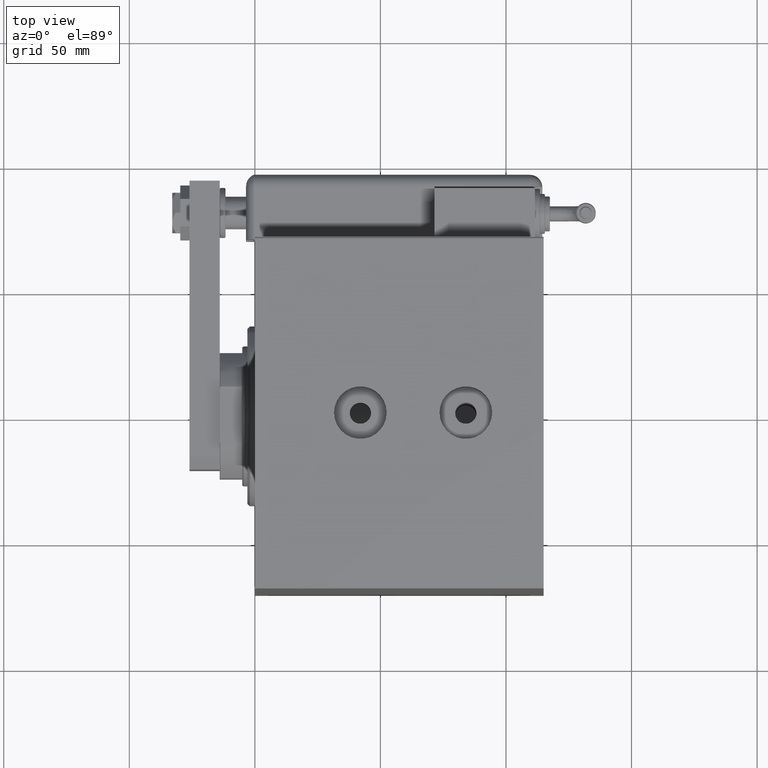
[diagram: clean part render]
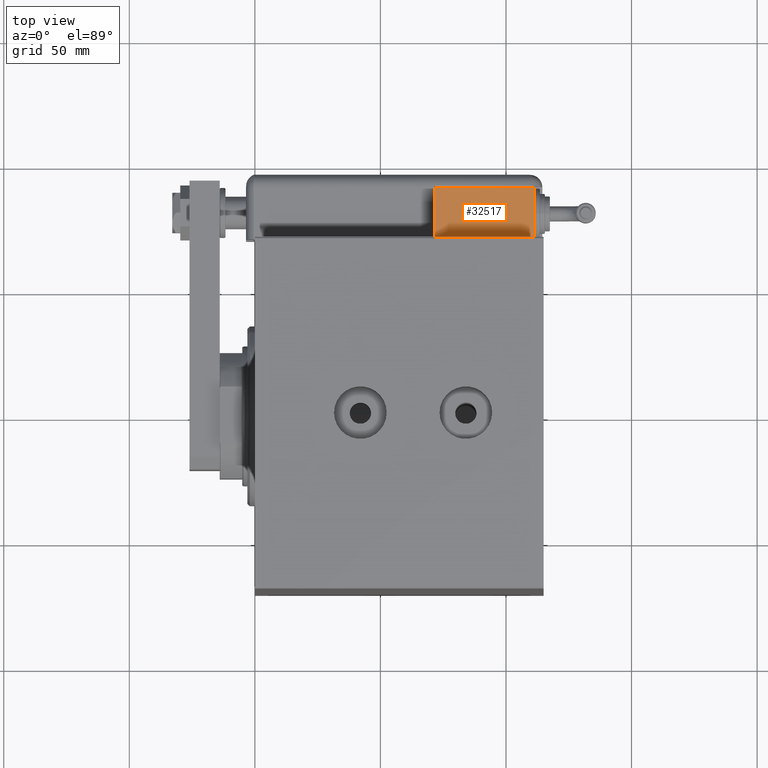
[diagram: same view with one face highlighted and labeled with its STEP entity id]
A machine part, top view. The second image highlights one B-rep face of the part: STEP entity #32517.
In plain terms, the highlighted planar face has unit normal (-0, -0, -1).
Its self-contained STEP definition (entity closure, byte-faithful):
#470 = DIRECTION ( 'NONE',  ( 0.000000000000000000, 0.000000000000000000, 1.000000000000000000 ) ) ;
#3324 = ORIENTED_EDGE ( 'NONE', *, *, #18363, .T. ) ;
#3403 = ORIENTED_EDGE ( 'NONE', *, *, #52948, .T. ) ;
#3454 = VERTEX_POINT ( 'NONE', #15677 ) ;
#5756 = CARTESIAN_POINT ( 'NONE',  ( 20.00000000000005329, -17.49999999999996092, -9.999999999999998224 ) ) ;
#7930 = DIRECTION ( 'NONE',  ( -0.000000000000000000, -0.000000000000000000, -1.000000000000000000 ) ) ;
#8152 = ORIENTED_EDGE ( 'NONE', *, *, #49590, .T. ) ;
#8832 = EDGE_CURVE ( 'NONE', #29249, #16597, #32072, .T. ) ;
#15344 = DIRECTION ( 'NONE',  ( 0.000000000000000000, 1.000000000000000000, 0.000000000000000000 ) ) ;
#15677 = CARTESIAN_POINT ( 'NONE',  ( 20.00000000000005329, -17.49999999999996092, -9.999999999999998224 ) ) ;
#16597 = VERTEX_POINT ( 'NONE', #33831 ) ;
#18363 = EDGE_CURVE ( 'NONE', #59631, #29249, #54680, .T. ) ;
#19613 = VECTOR ( 'NONE', #44157, 1000.000000000000000 ) ;
#23087 = CARTESIAN_POINT ( 'NONE',  ( -19.99999999999994316, -17.49999999999996092, -9.999999999999998224 ) ) ;
#28654 = FACE_OUTER_BOUND ( 'NONE', #52200, .T. ) ;
#29249 = VERTEX_POINT ( 'NONE', #60532 ) ;
#32072 = LINE ( 'NONE', #23087, #61194 ) ;
#32517 = ADVANCED_FACE ( 'NONE', ( #28654 ), #52482, .F. ) ;
#33613 = LINE ( 'NONE', #5756, #38859 ) ;
#33831 = CARTESIAN_POINT ( 'NONE',  ( -19.99999999999994316, -17.49999999999996092, -9.999999999999998224 ) ) ;
#34331 = ORIENTED_EDGE ( 'NONE', *, *, #8832, .T. ) ;
#38675 = CARTESIAN_POINT ( 'NONE',  ( -19.99999999999994316, -17.49999999999996092, -9.999999999999998224 ) ) ;
#38859 = VECTOR ( 'NONE', #470, 1000.000000000000000 ) ;
#41704 = AXIS2_PLACEMENT_3D ( 'NONE', #48158, #15344, #43809 ) ;
#42695 = DIRECTION ( 'NONE',  ( 1.000000000000000000, 0.000000000000000000, 0.000000000000000000 ) ) ;
#43809 = DIRECTION ( 'NONE',  ( 0.000000000000000000, -0.000000000000000000, 1.000000000000000000 ) ) ;
#44157 = DIRECTION ( 'NONE',  ( -1.000000000000000000, -0.000000000000000000, -0.000000000000000000 ) ) ;
#48158 = CARTESIAN_POINT ( 'NONE',  ( 0.000000000000000000, -17.49999999999996092, 0.000000000000000000 ) ) ;
#49590 = EDGE_CURVE ( 'NONE', #3454, #59631, #33613, .T. ) ;
#51698 = LINE ( 'NONE', #38675, #58762 ) ;
#52200 = EDGE_LOOP ( 'NONE', ( #8152, #3324, #34331, #3403 ) ) ;
#52482 = PLANE ( 'NONE',  #41704 ) ;
#52948 = EDGE_CURVE ( 'NONE', #16597, #3454, #51698, .T. ) ;
#54082 = CARTESIAN_POINT ( 'NONE',  ( 20.00000000000005329, -17.49999999999996092, 10.00000000000000000 ) ) ;
#54384 = CARTESIAN_POINT ( 'NONE',  ( -19.99999999999994316, -17.49999999999996092, 10.00000000000000000 ) ) ;
#54680 = LINE ( 'NONE', #54384, #19613 ) ;
#58762 = VECTOR ( 'NONE', #42695, 1000.000000000000000 ) ;
#59631 = VERTEX_POINT ( 'NONE', #54082 ) ;
#60532 = CARTESIAN_POINT ( 'NONE',  ( -19.99999999999994316, -17.49999999999996092, 10.00000000000000000 ) ) ;
#61194 = VECTOR ( 'NONE', #7930, 1000.000000000000000 ) ;